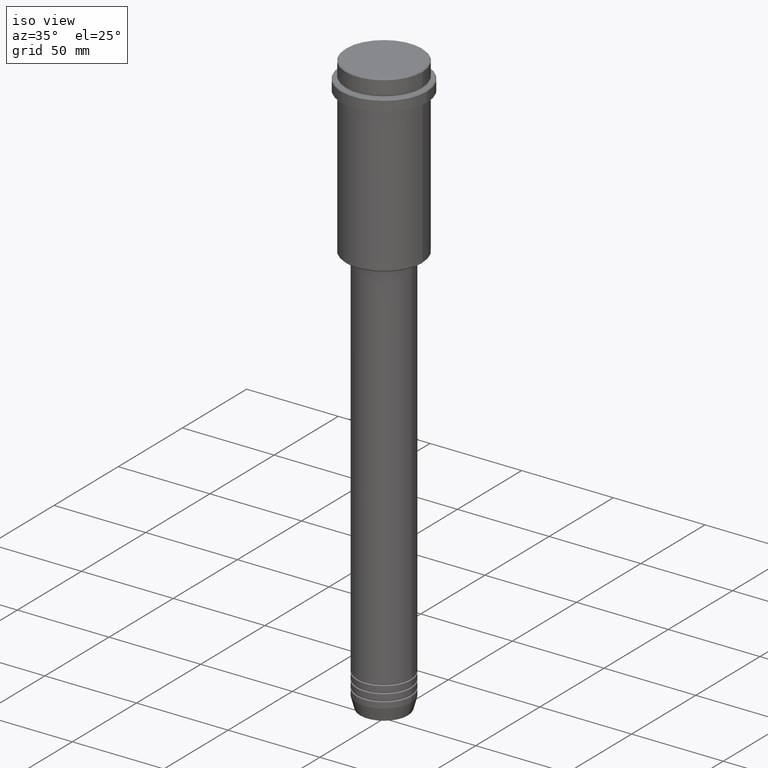
[diagram: clean part render]
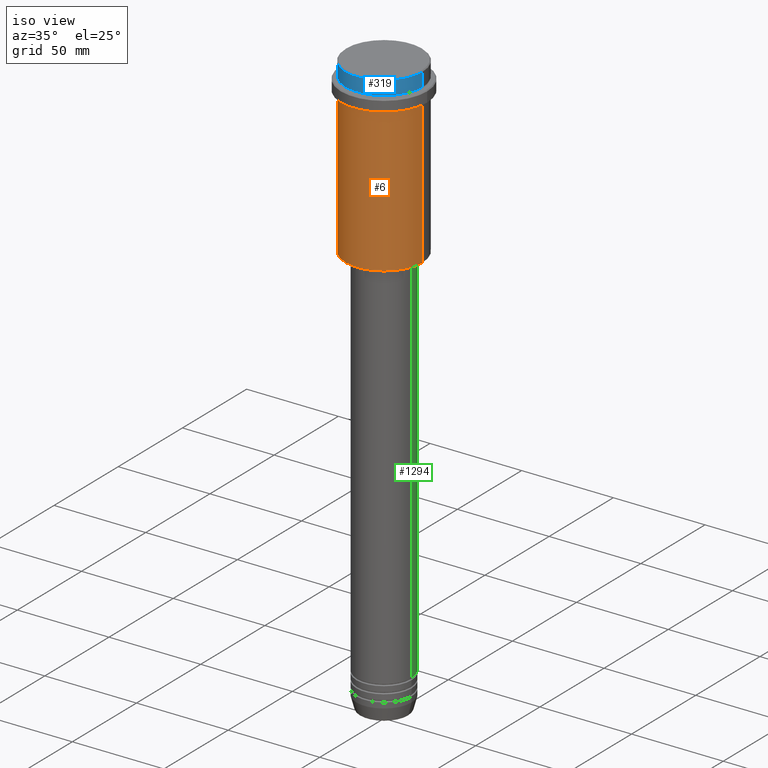
[diagram: same view with three faces highlighted in distinct colors, each labeled with its STEP entity id]
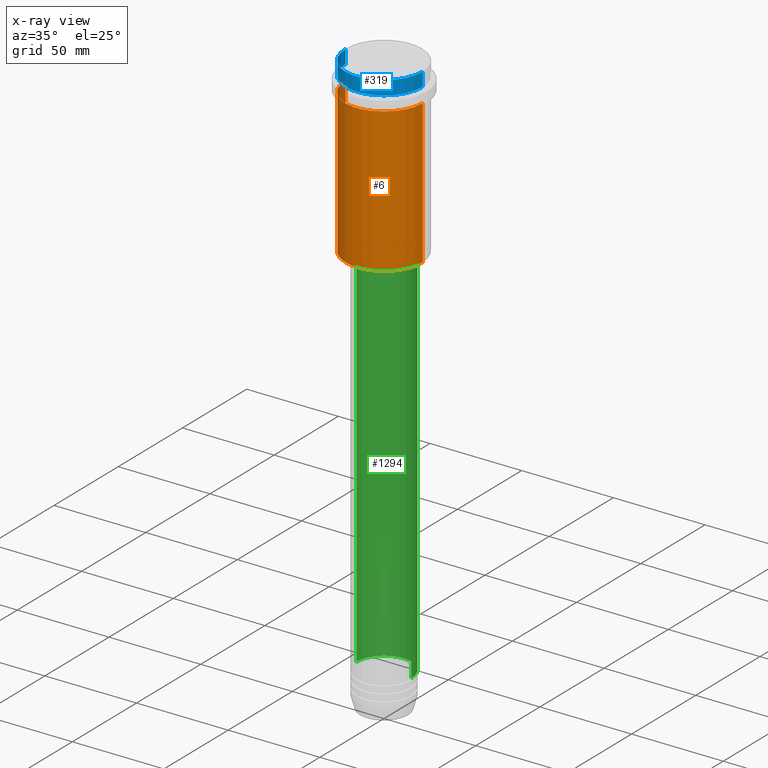
[diagram: x-ray of the same camera — body ghosted, the three highlighted faces saturated]
A machine part, iso view with three faces highlighted in distinct colors.
The next image is the same camera in x-ray (body ghosted, the three faces saturated) — at least one of them is partly hidden behind the body in this view.
Their STEP definitions:

[orange] entity #6 — the highlighted cylindrical surface (partial cylindrical patch) has radius 21 mm, axis along (-0, -0, 1).
#1 = DIRECTION ( 'NONE',  ( 1.000000000000000000, 0.000000000000000000, 0.000000000000000000 ) ) ;
#6 = ADVANCED_FACE ( 'NONE', ( #161 ), #54, .T. ) ;
#16 = ORIENTED_EDGE ( 'NONE', *, *, #55, .T. ) ;
#54 = CYLINDRICAL_SURFACE ( 'NONE', #1104, 21.00000000000000000 ) ;
#55 = EDGE_CURVE ( 'NONE', #506, #1327, #929, .T. ) ;
#77 = EDGE_CURVE ( 'NONE', #1210, #506, #1365, .T. ) ;
#150 = CARTESIAN_POINT ( 'NONE',  ( 0.000000000000000000, 0.000000000000000000, 0.000000000000000000 ) ) ;
#161 = FACE_OUTER_BOUND ( 'NONE', #540, .T. ) ;
#172 = DIRECTION ( 'NONE',  ( -0.000000000000000000, -0.000000000000000000, 1.000000000000000000 ) ) ;
#262 = CARTESIAN_POINT ( 'NONE',  ( 21.00000000000000000, 0.000000000000000000, 0.000000000000000000 ) ) ;
#485 = DIRECTION ( 'NONE',  ( -0.000000000000000000, -0.000000000000000000, 1.000000000000000000 ) ) ;
#506 = VERTEX_POINT ( 'NONE', #1358 ) ;
#540 = EDGE_LOOP ( 'NONE', ( #692, #547, #16, #1038 ) ) ;
#547 = ORIENTED_EDGE ( 'NONE', *, *, #77, .T. ) ;
#612 = AXIS2_PLACEMENT_3D ( 'NONE', #645, #1303, #1 ) ;
#645 = CARTESIAN_POINT ( 'NONE',  ( 0.000000000000000000, 0.000000000000000000, -16.00000000000000355 ) ) ;
#692 = ORIENTED_EDGE ( 'NONE', *, *, #881, .F. ) ;
#700 = CARTESIAN_POINT ( 'NONE',  ( 21.00000000000000000, 0.000000000000000000, -16.00000000000000355 ) ) ;
#739 = VERTEX_POINT ( 'NONE', #1005 ) ;
#800 = CIRCLE ( 'NONE', #612, 21.00000000000000000 ) ;
#841 = VECTOR ( 'NONE', #1045, 1000.000000000000000 ) ;
#881 = EDGE_CURVE ( 'NONE', #1210, #739, #1042, .T. ) ;
#917 = DIRECTION ( 'NONE',  ( -0.000000000000000000, -0.000000000000000000, 1.000000000000000000 ) ) ;
#929 = LINE ( 'NONE', #262, #1252 ) ;
#1003 = CARTESIAN_POINT ( 'NONE',  ( -21.00000000000000000, 2.571758278209441661E-15, -94.49999999999992895 ) ) ;
#1005 = CARTESIAN_POINT ( 'NONE',  ( -21.00000000000000000, 2.571758278209441661E-15, -16.00000000000000355 ) ) ;
#1038 = ORIENTED_EDGE ( 'NONE', *, *, #1134, .F. ) ;
#1042 = LINE ( 'NONE', #1247, #841 ) ;
#1045 = DIRECTION ( 'NONE',  ( -0.000000000000000000, -0.000000000000000000, 1.000000000000000000 ) ) ;
#1104 = AXIS2_PLACEMENT_3D ( 'NONE', #150, #485, #1250 ) ;
#1129 = DIRECTION ( 'NONE',  ( -1.000000000000000000, 0.000000000000000000, 0.000000000000000000 ) ) ;
#1134 = EDGE_CURVE ( 'NONE', #739, #1327, #800, .T. ) ;
#1138 = CARTESIAN_POINT ( 'NONE',  ( 0.000000000000000000, 0.000000000000000000, -94.49999999999992895 ) ) ;
#1210 = VERTEX_POINT ( 'NONE', #1003 ) ;
#1247 = CARTESIAN_POINT ( 'NONE',  ( -21.00000000000000000, 2.571758278209441661E-15, 0.000000000000000000 ) ) ;
#1250 = DIRECTION ( 'NONE',  ( 1.000000000000000000, 0.000000000000000000, 0.000000000000000000 ) ) ;
#1252 = VECTOR ( 'NONE', #917, 1000.000000000000000 ) ;
#1295 = AXIS2_PLACEMENT_3D ( 'NONE', #1138, #172, #1129 ) ;
#1303 = DIRECTION ( 'NONE',  ( -0.000000000000000000, -0.000000000000000000, 1.000000000000000000 ) ) ;
#1327 = VERTEX_POINT ( 'NONE', #700 ) ;
#1358 = CARTESIAN_POINT ( 'NONE',  ( 21.00000000000000000, 0.000000000000000000, -94.49999999999992895 ) ) ;
#1365 = CIRCLE ( 'NONE', #1295, 21.00000000000000000 ) ;

[blue] entity #319 — the highlighted cylindrical surface (partial cylindrical patch) has radius 21 mm, axis along (-0, -0, 1).
#40 = CARTESIAN_POINT ( 'NONE',  ( 0.000000000000000000, 0.000000000000000000, -0.4999999999999553690 ) ) ;
#108 = AXIS2_PLACEMENT_3D ( 'NONE', #40, #1123, #270 ) ;
#110 = EDGE_LOOP ( 'NONE', ( #1098, #1067, #425, #123 ) ) ;
#123 = ORIENTED_EDGE ( 'NONE', *, *, #1322, .T. ) ;
#195 = VERTEX_POINT ( 'NONE', #953 ) ;
#223 = FACE_OUTER_BOUND ( 'NONE', #110, .T. ) ;
#263 = CARTESIAN_POINT ( 'NONE',  ( -21.00000000000000000, 2.571758278209441661E-15, -7.999999999999998224 ) ) ;
#270 = DIRECTION ( 'NONE',  ( 1.000000000000000000, 0.000000000000000000, 0.000000000000000000 ) ) ;
#319 = ADVANCED_FACE ( 'NONE', ( #223 ), #668, .T. ) ;
#320 = DIRECTION ( 'NONE',  ( -0.000000000000000000, -0.000000000000000000, 1.000000000000000000 ) ) ;
#380 = CIRCLE ( 'NONE', #108, 21.00000000000000000 ) ;
#410 = CARTESIAN_POINT ( 'NONE',  ( 0.000000000000000000, 0.000000000000000000, -7.999999999999998224 ) ) ;
#418 = AXIS2_PLACEMENT_3D ( 'NONE', #1096, #673, #1102 ) ;
#425 = ORIENTED_EDGE ( 'NONE', *, *, #736, .T. ) ;
#441 = CARTESIAN_POINT ( 'NONE',  ( 21.00000000000000000, 0.000000000000000000, -0.4999999999999553690 ) ) ;
#492 = VERTEX_POINT ( 'NONE', #499 ) ;
#499 = CARTESIAN_POINT ( 'NONE',  ( 21.00000000000000000, 0.000000000000000000, -7.999999999999998224 ) ) ;
#567 = CIRCLE ( 'NONE', #936, 21.00000000000000000 ) ;
#666 = CARTESIAN_POINT ( 'NONE',  ( 21.00000000000000000, 0.000000000000000000, 0.000000000000000000 ) ) ;
#668 = CYLINDRICAL_SURFACE ( 'NONE', #418, 21.00000000000000000 ) ;
#673 = DIRECTION ( 'NONE',  ( -0.000000000000000000, -0.000000000000000000, 1.000000000000000000 ) ) ;
#729 = DIRECTION ( 'NONE',  ( 1.000000000000000000, 0.000000000000000000, 0.000000000000000000 ) ) ;
#736 = EDGE_CURVE ( 'NONE', #492, #1147, #1335, .T. ) ;
#830 = DIRECTION ( 'NONE',  ( -0.000000000000000000, -0.000000000000000000, 1.000000000000000000 ) ) ;
#863 = LINE ( 'NONE', #1309, #941 ) ;
#936 = AXIS2_PLACEMENT_3D ( 'NONE', #410, #830, #729 ) ;
#941 = VECTOR ( 'NONE', #320, 1000.000000000000000 ) ;
#953 = CARTESIAN_POINT ( 'NONE',  ( -21.00000000000000000, 2.571758278209441661E-15, -0.4999999999999553690 ) ) ;
#1027 = EDGE_CURVE ( 'NONE', #1286, #492, #567, .T. ) ;
#1067 = ORIENTED_EDGE ( 'NONE', *, *, #1027, .T. ) ;
#1094 = DIRECTION ( 'NONE',  ( -0.000000000000000000, -0.000000000000000000, 1.000000000000000000 ) ) ;
#1096 = CARTESIAN_POINT ( 'NONE',  ( 0.000000000000000000, 0.000000000000000000, 0.000000000000000000 ) ) ;
#1098 = ORIENTED_EDGE ( 'NONE', *, *, #1238, .F. ) ;
#1102 = DIRECTION ( 'NONE',  ( 1.000000000000000000, 0.000000000000000000, 0.000000000000000000 ) ) ;
#1123 = DIRECTION ( 'NONE',  ( 0.000000000000000000, 0.000000000000000000, -1.000000000000000000 ) ) ;
#1147 = VERTEX_POINT ( 'NONE', #441 ) ;
#1233 = VECTOR ( 'NONE', #1094, 1000.000000000000000 ) ;
#1238 = EDGE_CURVE ( 'NONE', #1286, #195, #863, .T. ) ;
#1286 = VERTEX_POINT ( 'NONE', #263 ) ;
#1309 = CARTESIAN_POINT ( 'NONE',  ( -21.00000000000000000, 2.571758278209441661E-15, 0.000000000000000000 ) ) ;
#1322 = EDGE_CURVE ( 'NONE', #1147, #195, #380, .T. ) ;
#1335 = LINE ( 'NONE', #666, #1233 ) ;

[green] entity #1294 — the highlighted cylindrical surface (edge-blend (fillet) strip) has radius 15 mm, axis along (-0, -0, 1).
#8 = EDGE_CURVE ( 'NONE', #1273, #284, #828, .T. ) ;
#56 = CARTESIAN_POINT ( 'NONE',  ( -15.00000000000000000, 1.836970198721029589E-15, 0.000000000000000000 ) ) ;
#134 = FACE_OUTER_BOUND ( 'NONE', #448, .T. ) ;
#180 = CARTESIAN_POINT ( 'NONE',  ( -15.00000000000000000, 1.836970198721029589E-15, -95.99999999999991473 ) ) ;
#198 = CIRCLE ( 'NONE', #374, 15.00000000000000000 ) ;
#214 = ORIENTED_EDGE ( 'NONE', *, *, #1282, .T. ) ;
#237 = CARTESIAN_POINT ( 'NONE',  ( 15.00000000000000000, 0.000000000000000000, -95.99999999999991473 ) ) ;
#240 = VERTEX_POINT ( 'NONE', #351 ) ;
#276 = CYLINDRICAL_SURFACE ( 'NONE', #1353, 15.00000000000000000 ) ;
#284 = VERTEX_POINT ( 'NONE', #237 ) ;
#335 = AXIS2_PLACEMENT_3D ( 'NONE', #1338, #920, #1246 ) ;
#351 = CARTESIAN_POINT ( 'NONE',  ( -15.00000000000000000, 1.836970198721029589E-15, -300.9999999999998863 ) ) ;
#363 = DIRECTION ( 'NONE',  ( -0.000000000000000000, -0.000000000000000000, 1.000000000000000000 ) ) ;
#374 = AXIS2_PLACEMENT_3D ( 'NONE', #1256, #581, #382 ) ;
#382 = DIRECTION ( 'NONE',  ( 1.000000000000000000, 0.000000000000000000, 0.000000000000000000 ) ) ;
#384 = ORIENTED_EDGE ( 'NONE', *, *, #8, .F. ) ;
#412 = EDGE_CURVE ( 'NONE', #1273, #240, #198, .T. ) ;
#416 = VECTOR ( 'NONE', #1044, 1000.000000000000000 ) ;
#448 = EDGE_LOOP ( 'NONE', ( #1375, #214, #1019, #384 ) ) ;
#459 = CARTESIAN_POINT ( 'NONE',  ( 0.000000000000000000, 0.000000000000000000, 0.000000000000000000 ) ) ;
#519 = CIRCLE ( 'NONE', #335, 15.00000000000000000 ) ;
#581 = DIRECTION ( 'NONE',  ( -0.000000000000000000, -0.000000000000000000, 1.000000000000000000 ) ) ;
#650 = VERTEX_POINT ( 'NONE', #180 ) ;
#693 = LINE ( 'NONE', #56, #1156 ) ;
#803 = CARTESIAN_POINT ( 'NONE',  ( 15.00000000000000000, 0.000000000000000000, -300.9999999999998863 ) ) ;
#809 = DIRECTION ( 'NONE',  ( 1.000000000000000000, 0.000000000000000000, 0.000000000000000000 ) ) ;
#828 = LINE ( 'NONE', #1054, #416 ) ;
#920 = DIRECTION ( 'NONE',  ( -0.000000000000000000, -0.000000000000000000, 1.000000000000000000 ) ) ;
#930 = DIRECTION ( 'NONE',  ( -0.000000000000000000, -0.000000000000000000, 1.000000000000000000 ) ) ;
#1019 = ORIENTED_EDGE ( 'NONE', *, *, #1265, .F. ) ;
#1044 = DIRECTION ( 'NONE',  ( -0.000000000000000000, -0.000000000000000000, 1.000000000000000000 ) ) ;
#1054 = CARTESIAN_POINT ( 'NONE',  ( 15.00000000000000000, 0.000000000000000000, 0.000000000000000000 ) ) ;
#1156 = VECTOR ( 'NONE', #930, 1000.000000000000000 ) ;
#1246 = DIRECTION ( 'NONE',  ( 1.000000000000000000, 0.000000000000000000, 0.000000000000000000 ) ) ;
#1256 = CARTESIAN_POINT ( 'NONE',  ( 0.000000000000000000, 0.000000000000000000, -300.9999999999998863 ) ) ;
#1265 = EDGE_CURVE ( 'NONE', #284, #650, #519, .T. ) ;
#1273 = VERTEX_POINT ( 'NONE', #803 ) ;
#1282 = EDGE_CURVE ( 'NONE', #240, #650, #693, .T. ) ;
#1294 = ADVANCED_FACE ( 'NONE', ( #134 ), #276, .T. ) ;
#1338 = CARTESIAN_POINT ( 'NONE',  ( 0.000000000000000000, 0.000000000000000000, -95.99999999999991473 ) ) ;
#1353 = AXIS2_PLACEMENT_3D ( 'NONE', #459, #363, #809 ) ;
#1375 = ORIENTED_EDGE ( 'NONE', *, *, #412, .T. ) ;